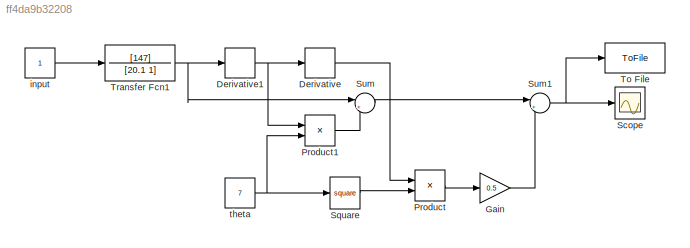
MODEL slx_ff4da9b32208
KIND model
CONFIG AbsTol = auto
CONFIG EnableMultiTasking = off
CONFIG FixedStep = 1e-3
CONFIG MaxStep = auto
CONFIG MinStep = auto
CONFIG RelTol = 1e-3
CONFIG SampleTimeConstraint = Unconstrained
CONFIG SolverName = ode4
CONFIG StartTime = 0.0
CONFIG StopTime = 200
BLOCK [Derivative] Derivative
BLOCK [Derivative] Derivative1
BLOCK [Gain] Gain
  Gain = 0.5
BLOCK [Product] Product
  Ports = [2, 1]
BLOCK [Product] Product1
  Ports = [2, 1]
BLOCK [Scope] Scope
  Floating = off
  NumInputPorts = 1
  Ports = [1]
  ScopeSpecificationString = Simulink.scopes.TimeScopeBlockCfg('CurrentConfiguration', extmgr.ConfigurationSet(extmgr.Configuration('Core','General UI',true),extmgr.Configuration('Core','Source UI',true),extmgr.Configuration('Sources','WiredSimulink',true),extmgr.Configuration('Visuals','Time Domain',true,'SerializedDisplays',{struct('MinYLimReal','-26.7618','MaxYLimReal','10.63816','YLabelReal','','MinYLimMag','0.00000','Max...<+1398ch>
BLOCK [Math] Square
  Operator = square
  Ports = [1, 1]
BLOCK [Sum] Sum
  Inputs = |+-
  Ports = [2, 1]
BLOCK [Sum] Sum1
  Inputs = |++
  Ports = [2, 1]
BLOCK [ToFile] To File
  Ports = [1]
  SaveFormat = Timeseries
BLOCK [TransferFcn] Transfer Fcn1
  Denominator = [20.1 1]
  Numerator = [147]
BLOCK [Constant] input
BLOCK [Constant] theta
  Value = 7
NET Derivative1:1 -> Derivative:1, Product1:1
LINE Derivative:1 -> Product:1
LINE Gain:1 -> Sum1:2
LINE Product1:1 -> Sum:2
LINE Product:1 -> Gain:1
LINE Square:1 -> Product:2
NET Sum1:1 -> Scope:1, To File:1
LINE Sum:1 -> Sum1:1
NET Transfer Fcn1:1 -> Derivative1:1, Sum:1
LINE input:1 -> Transfer Fcn1:1
NET theta:1 -> Product1:2, Square:1
note: NET lines group one-source signal fan-out (src -> all destinations, sorted); 1:1 wires keep LINE
